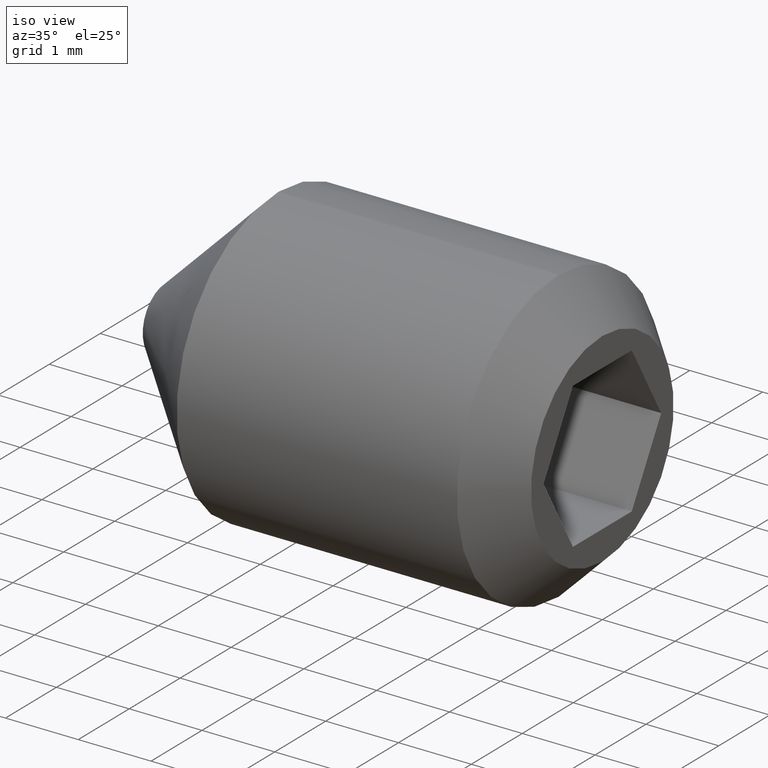
[diagram: clean part render]
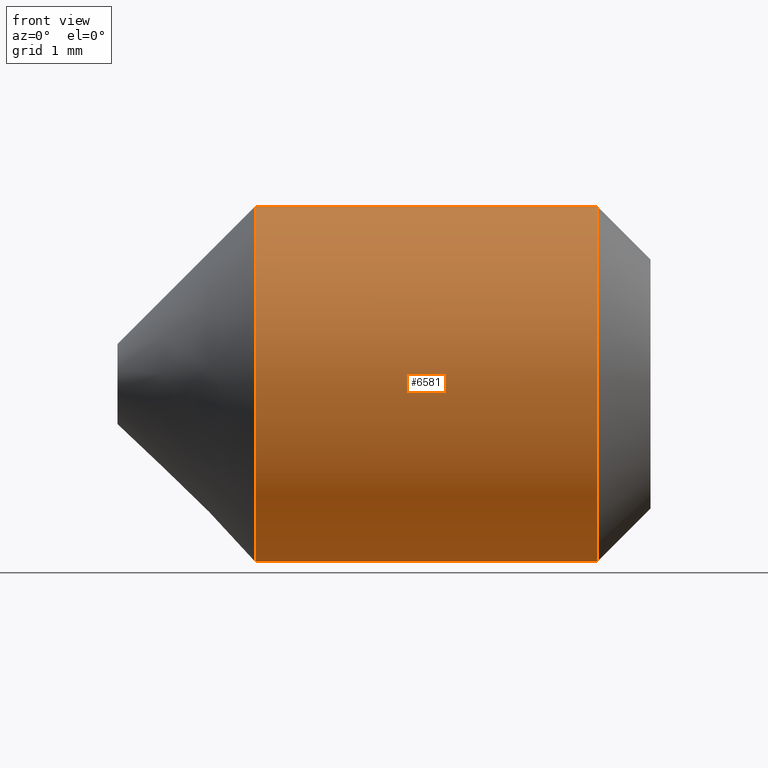
[diagram: tour spotlight — one face highlighted and labeled with its STEP entity id]
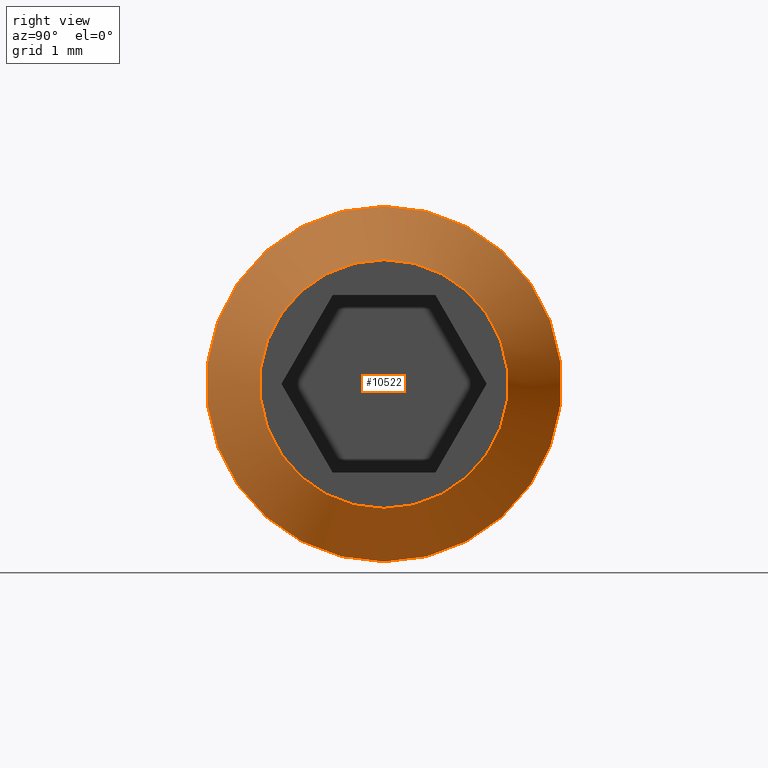
[diagram: tour spotlight — one face highlighted and labeled with its STEP entity id]
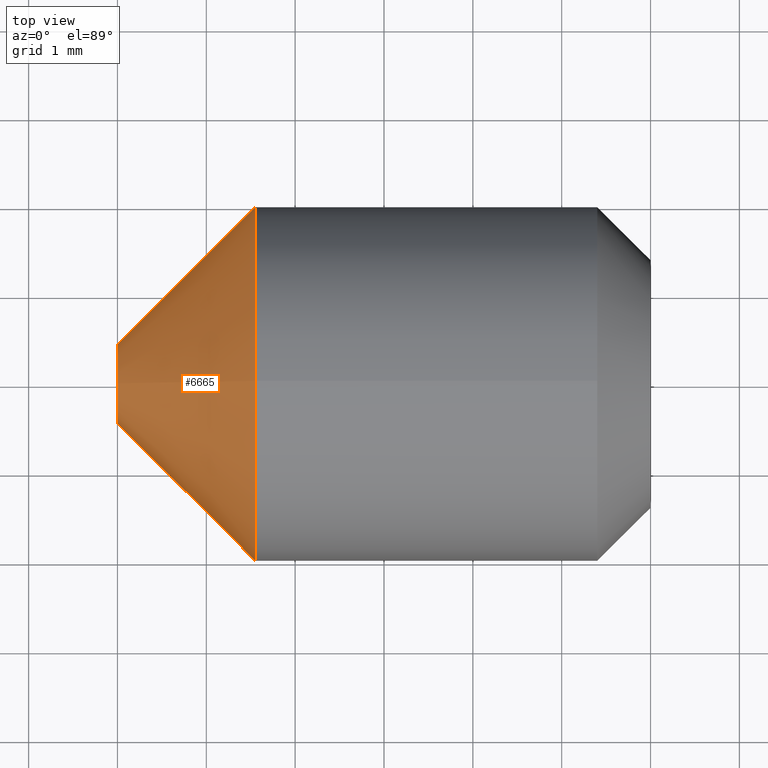
[diagram: tour spotlight — one face highlighted and labeled with its STEP entity id]
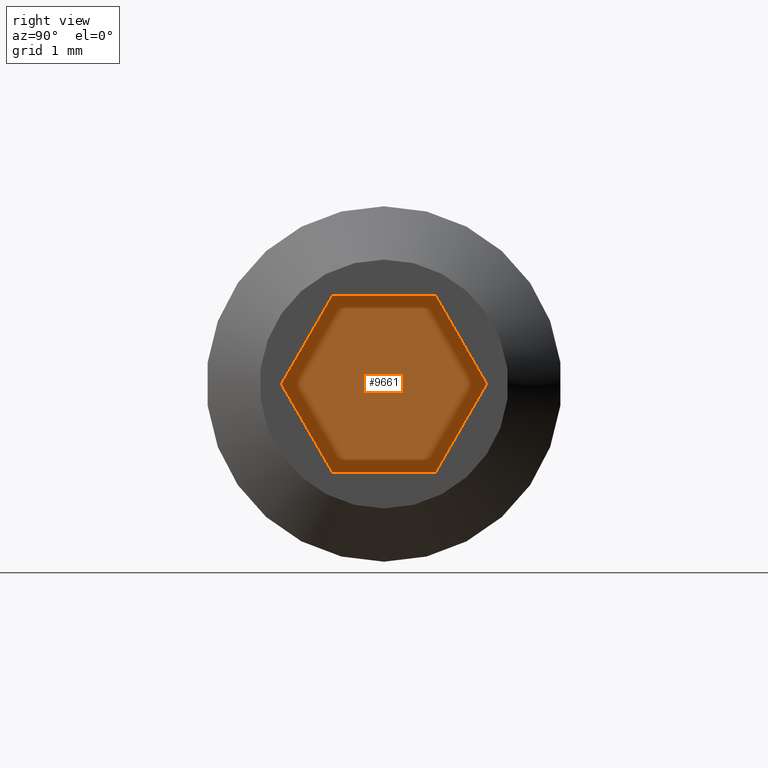
[diagram: tour spotlight — one face highlighted and labeled with its STEP entity id]
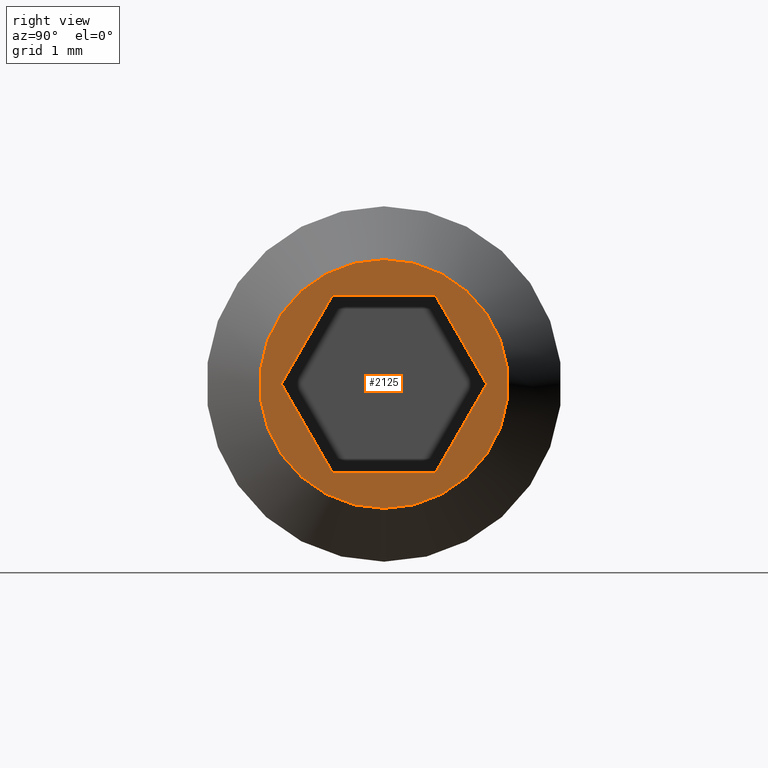
[diagram: tour spotlight — one face highlighted and labeled with its STEP entity id]
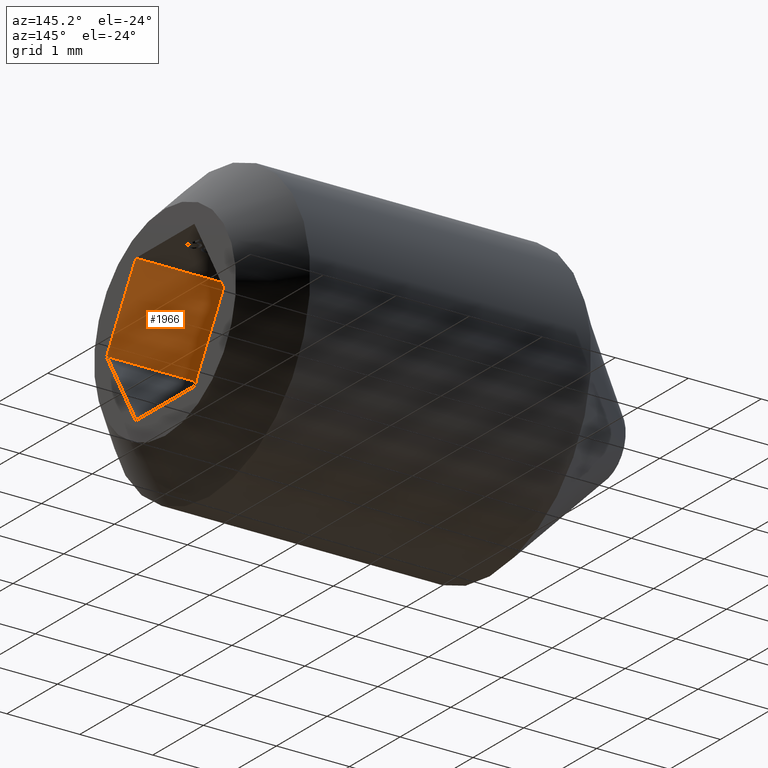
[diagram: tour spotlight — one face highlighted and labeled with its STEP entity id]
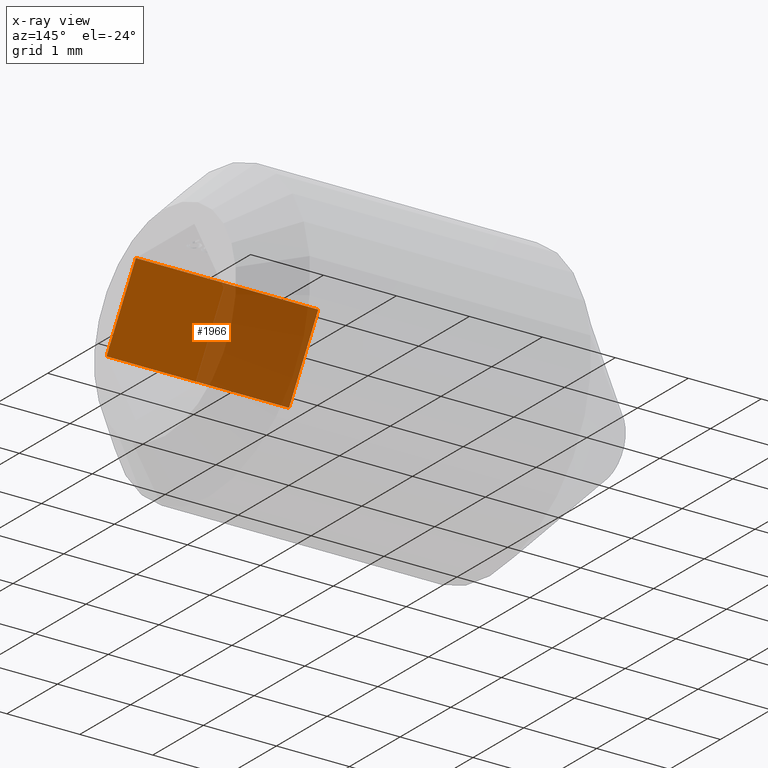
[diagram: x-ray of the same camera — body ghosted, this tour face saturated]
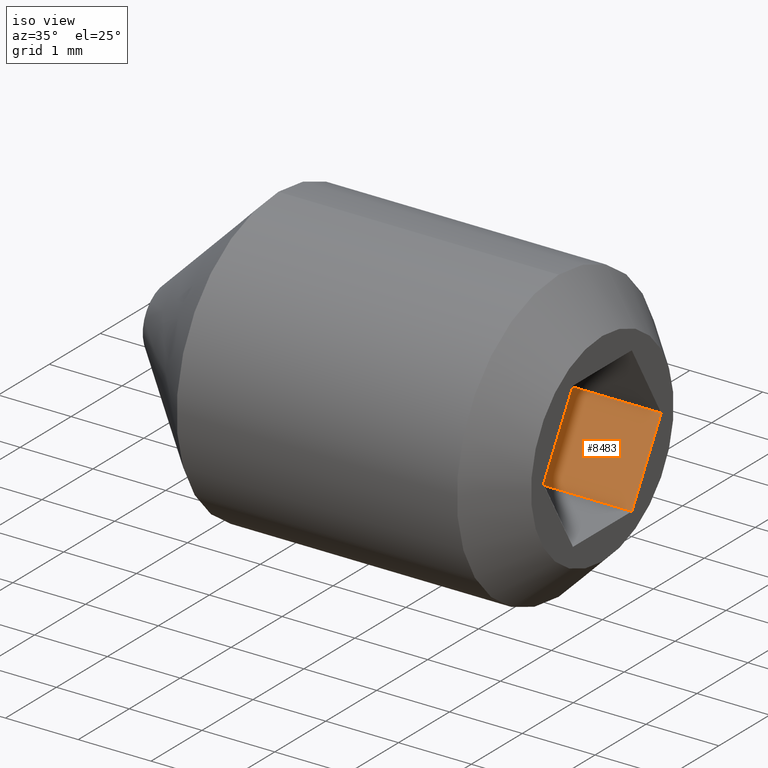
[diagram: tour spotlight — one face highlighted and labeled with its STEP entity id]
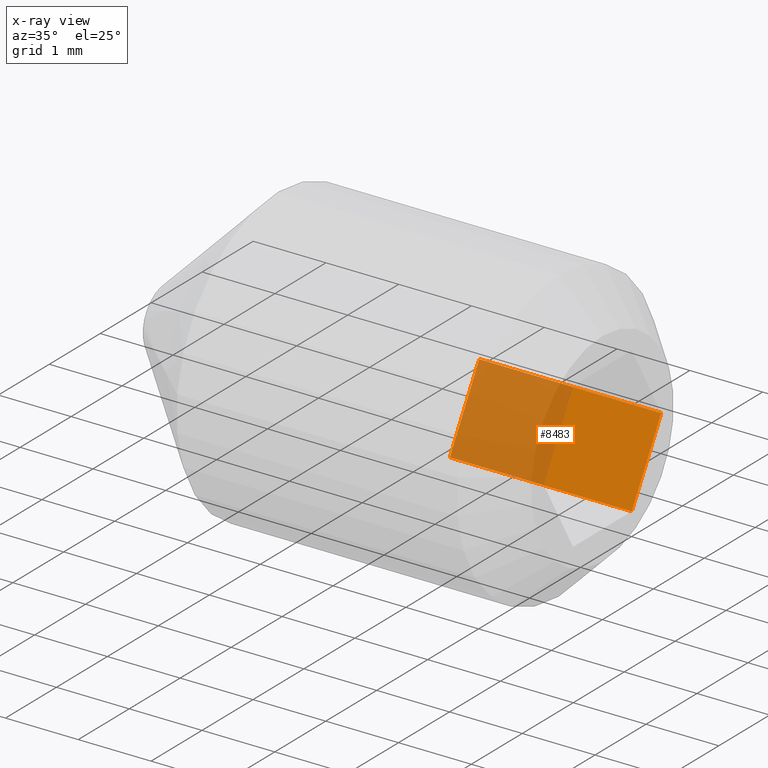
[diagram: x-ray of the same camera — body ghosted, this tour face saturated]
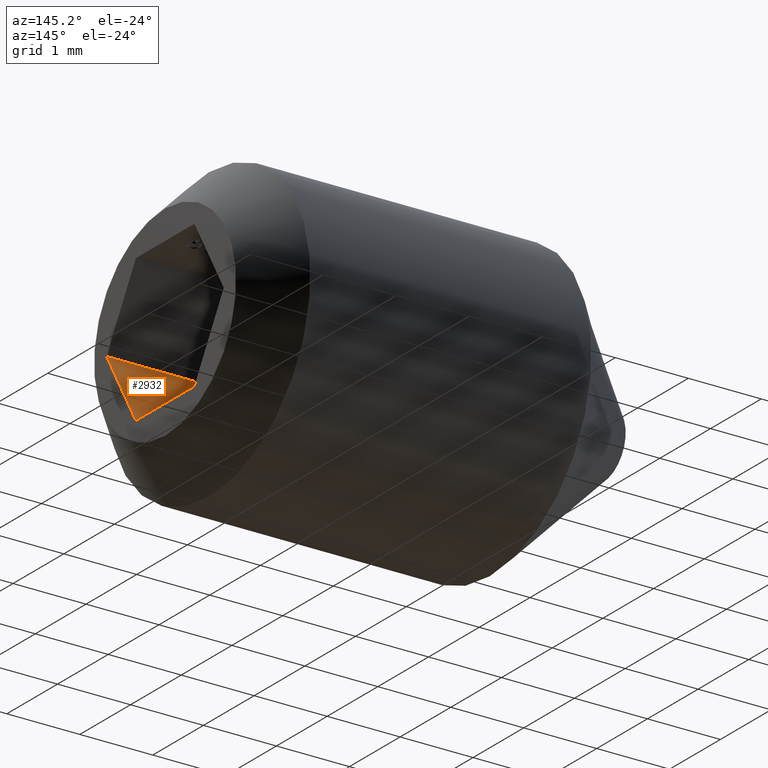
[diagram: tour spotlight — one face highlighted and labeled with its STEP entity id]
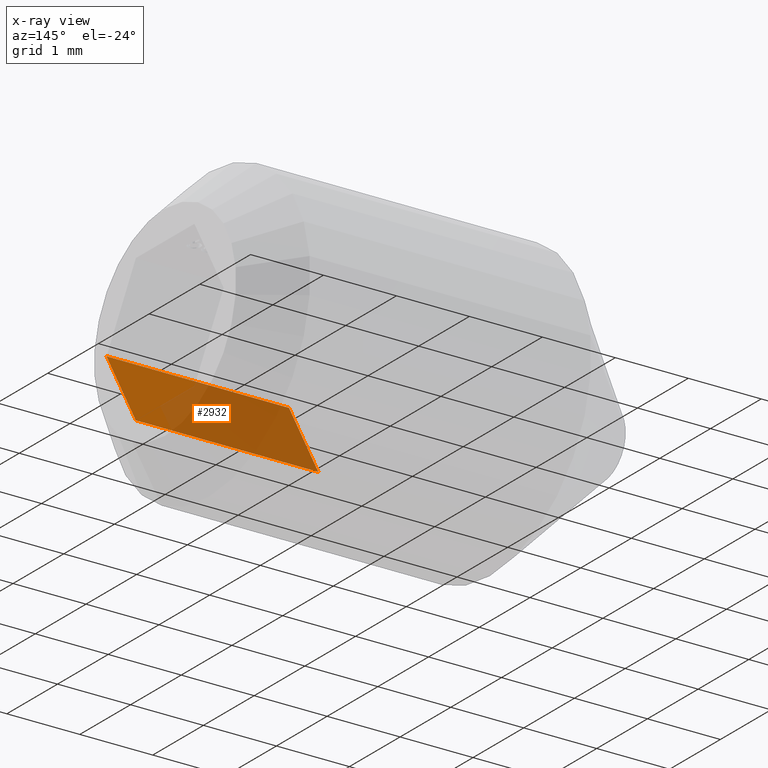
[diagram: x-ray of the same camera — body ghosted, this tour face saturated]
A machine part: a face-by-face anatomy tour. The part has 165 B-rep faces; the first image is the clean iso view, then the 8 largest visible faces are spotlighted one at a time (largest first), each with its STEP entity span.

Face 1 — front view, entity #6581. In plain terms, the highlighted cylindrical surface (bore or boss wall) has radius 2 mm, axis along (-1, -0, -0).
Definition (entity closure, byte-faithful):
#361 = FACE_OUTER_BOUND ( 'NONE', #9504, .T. ) ;
#489 = VERTEX_POINT ( 'NONE', #10719 ) ;
#537 = CARTESIAN_POINT ( 'NONE',  ( 1.549999999999982100, 0.0000000000000000000, 0.0000000000000000000 ) ) ;
#636 = FACE_OUTER_BOUND ( 'NONE', #8634, .T. ) ;
#1382 = DIRECTION ( 'NONE',  ( 0.0000000000000000000, 0.0000000000000000000, 1.000000000000000000 ) ) ;
#2791 = CIRCLE ( 'NONE', #4809, 2.000000000000000000 ) ;
#3397 = CARTESIAN_POINT ( 'NONE',  ( 6.000000000000000000, 0.0000000000000000000, 0.0000000000000000000 ) ) ;
#3510 = DIRECTION ( 'NONE',  ( 0.0000000000000000000, 0.0000000000000000000, 1.000000000000000000 ) ) ;
#3928 = ORIENTED_EDGE ( 'NONE', *, *, #9638, .F. ) ;
#4579 = AXIS2_PLACEMENT_3D ( 'NONE', #3397, #8719, #3510 ) ;
#4809 = AXIS2_PLACEMENT_3D ( 'NONE', #5770, #5037, #4888 ) ;
#4810 = ORIENTED_EDGE ( 'NONE', *, *, #7386, .T. ) ;
#4888 = DIRECTION ( 'NONE',  ( 0.0000000000000000000, 0.0000000000000000000, -1.000000000000000000 ) ) ;
#4957 = AXIS2_PLACEMENT_3D ( 'NONE', #537, #5634, #1382 ) ;
#5037 = DIRECTION ( 'NONE',  ( -1.000000000000000000, 0.0000000000000000000, 0.0000000000000000000 ) ) ;
#5634 = DIRECTION ( 'NONE',  ( -1.000000000000000000, -0.0000000000000000000, -0.0000000000000000000 ) ) ;
#5703 = VERTEX_POINT ( 'NONE', #6362 ) ;
#5770 = CARTESIAN_POINT ( 'NONE',  ( 5.399999999999998600, 0.0000000000000000000, 0.0000000000000000000 ) ) ;
#6362 = CARTESIAN_POINT ( 'NONE',  ( 5.399999999999998600, 0.0000000000000000000, -2.000000000000000000 ) ) ;
#6581 = ADVANCED_FACE ( 'NONE', ( #636, #361 ), #8569, .T. ) ;
#7386 = EDGE_CURVE ( 'NONE', #5703, #5703, #2791, .T. ) ;
#8569 = CYLINDRICAL_SURFACE ( 'NONE', #4579, 2.000000000000000000 ) ;
#8634 = EDGE_LOOP ( 'NONE', ( #4810 ) ) ;
#8719 = DIRECTION ( 'NONE',  ( -1.000000000000000000, -0.0000000000000000000, -0.0000000000000000000 ) ) ;
#9393 = CIRCLE ( 'NONE', #4957, 2.000000000000000000 ) ;
#9504 = EDGE_LOOP ( 'NONE', ( #3928 ) ) ;
#9638 = EDGE_CURVE ( 'NONE', #489, #489, #9393, .T. ) ;
#10719 = CARTESIAN_POINT ( 'NONE',  ( 1.549999999999982100, 0.0000000000000000000, 2.000000000000000000 ) ) ;

Face 2 — right view, entity #10522. In plain terms, the highlighted conical surface has half-angle 45 deg.
Definition (entity closure, byte-faithful):
#995 = DIRECTION ( 'NONE',  ( 1.000000000000000000, 0.0000000000000000000, 0.0000000000000000000 ) ) ;
#1438 = EDGE_LOOP ( 'NONE', ( #6325 ) ) ;
#1467 = CARTESIAN_POINT ( 'NONE',  ( 6.000000000000000000, 0.0000000000000000000, 0.0000000000000000000 ) ) ;
#2791 = CIRCLE ( 'NONE', #4809, 2.000000000000000000 ) ;
#2945 = FACE_BOUND ( 'NONE', #11274, .T. ) ;
#4809 = AXIS2_PLACEMENT_3D ( 'NONE', #5770, #5037, #4888 ) ;
#4888 = DIRECTION ( 'NONE',  ( 0.0000000000000000000, 0.0000000000000000000, -1.000000000000000000 ) ) ;
#5037 = DIRECTION ( 'NONE',  ( -1.000000000000000000, 0.0000000000000000000, 0.0000000000000000000 ) ) ;
#5278 = DIRECTION ( 'NONE',  ( 0.0000000000000000000, 0.0000000000000000000, -1.000000000000000000 ) ) ;
#5703 = VERTEX_POINT ( 'NONE', #6362 ) ;
#5770 = CARTESIAN_POINT ( 'NONE',  ( 5.399999999999998600, 0.0000000000000000000, 0.0000000000000000000 ) ) ;
#5835 = VERTEX_POINT ( 'NONE', #7157 ) ;
#6325 = ORIENTED_EDGE ( 'NONE', *, *, #7386, .F. ) ;
#6362 = CARTESIAN_POINT ( 'NONE',  ( 5.399999999999998600, 0.0000000000000000000, -2.000000000000000000 ) ) ;
#7157 = CARTESIAN_POINT ( 'NONE',  ( 6.000000000000000000, 0.0000000000000000000, -1.400000000000000100 ) ) ;
#7386 = EDGE_CURVE ( 'NONE', #5703, #5703, #2791, .T. ) ;
#7533 = DIRECTION ( 'NONE',  ( -1.000000000000000000, 0.0000000000000000000, 0.0000000000000000000 ) ) ;
#8427 = DIRECTION ( 'NONE',  ( 0.0000000000000000000, 0.0000000000000000000, 1.000000000000000000 ) ) ;
#8445 = ORIENTED_EDGE ( 'NONE', *, *, #9381, .F. ) ;
#8703 = CONICAL_SURFACE ( 'NONE', #9839, 1.400000000000000100, 0.7853981633974469500 ) ;
#9201 = AXIS2_PLACEMENT_3D ( 'NONE', #10619, #995, #5278 ) ;
#9381 = EDGE_CURVE ( 'NONE', #5835, #5835, #10202, .T. ) ;
#9839 = AXIS2_PLACEMENT_3D ( 'NONE', #1467, #7533, #8427 ) ;
#10202 = CIRCLE ( 'NONE', #9201, 1.400000000000000100 ) ;
#10522 = ADVANCED_FACE ( 'NONE', ( #11281, #2945 ), #8703, .T. ) ;
#10619 = CARTESIAN_POINT ( 'NONE',  ( 6.000000000000000000, 0.0000000000000000000, 0.0000000000000000000 ) ) ;
#11274 = EDGE_LOOP ( 'NONE', ( #8445 ) ) ;
#11281 = FACE_OUTER_BOUND ( 'NONE', #1438, .T. ) ;

Face 3 — top view, entity #6665. In plain terms, the highlighted conical surface has half-angle 45 deg.
Definition (entity closure, byte-faithful):
#468 = DIRECTION ( 'NONE',  ( -1.000000000000000000, -0.0000000000000000000, -0.0000000000000000000 ) ) ;
#489 = VERTEX_POINT ( 'NONE', #10719 ) ;
#537 = CARTESIAN_POINT ( 'NONE',  ( 1.549999999999982100, 0.0000000000000000000, 0.0000000000000000000 ) ) ;
#854 = EDGE_LOOP ( 'NONE', ( #1223 ) ) ;
#1143 = DIRECTION ( 'NONE',  ( 0.0000000000000000000, 0.0000000000000000000, -1.000000000000000000 ) ) ;
#1223 = ORIENTED_EDGE ( 'NONE', *, *, #9638, .T. ) ;
#1382 = DIRECTION ( 'NONE',  ( 0.0000000000000000000, 0.0000000000000000000, 1.000000000000000000 ) ) ;
#2887 = EDGE_LOOP ( 'NONE', ( #3320 ) ) ;
#2976 = CIRCLE ( 'NONE', #10121, 0.4500000000000000100 ) ;
#3248 = CARTESIAN_POINT ( 'NONE',  ( 4.347496136973103900E-016, 0.0000000000000000000, 0.0000000000000000000 ) ) ;
#3320 = ORIENTED_EDGE ( 'NONE', *, *, #4423, .F. ) ;
#4310 = VERTEX_POINT ( 'NONE', #5500 ) ;
#4423 = EDGE_CURVE ( 'NONE', #4310, #4310, #2976, .T. ) ;
#4662 = DIRECTION ( 'NONE',  ( 1.000000000000000000, 0.0000000000000000000, 0.0000000000000000000 ) ) ;
#4957 = AXIS2_PLACEMENT_3D ( 'NONE', #537, #5634, #1382 ) ;
#5500 = CARTESIAN_POINT ( 'NONE',  ( 4.347496136973103900E-016, 0.0000000000000000000, 0.4500000000000000100 ) ) ;
#5634 = DIRECTION ( 'NONE',  ( -1.000000000000000000, -0.0000000000000000000, -0.0000000000000000000 ) ) ;
#5831 = DIRECTION ( 'NONE',  ( 0.0000000000000000000, 0.0000000000000000000, 1.000000000000000000 ) ) ;
#6409 = CARTESIAN_POINT ( 'NONE',  ( 4.347496136973103900E-016, 0.0000000000000000000, 0.0000000000000000000 ) ) ;
#6665 = ADVANCED_FACE ( 'NONE', ( #10331, #11010 ), #7731, .T. ) ;
#7731 = CONICAL_SURFACE ( 'NONE', #8322, 0.4500000000000000100, 0.7853981633974542700 ) ;
#8322 = AXIS2_PLACEMENT_3D ( 'NONE', #6409, #4662, #1143 ) ;
#9393 = CIRCLE ( 'NONE', #4957, 2.000000000000000000 ) ;
#9638 = EDGE_CURVE ( 'NONE', #489, #489, #9393, .T. ) ;
#10121 = AXIS2_PLACEMENT_3D ( 'NONE', #3248, #468, #5831 ) ;
#10331 = FACE_OUTER_BOUND ( 'NONE', #854, .T. ) ;
#10719 = CARTESIAN_POINT ( 'NONE',  ( 1.549999999999982100, 0.0000000000000000000, 2.000000000000000000 ) ) ;
#11010 = FACE_BOUND ( 'NONE', #2887, .T. ) ;

Face 4 — right view, entity #9661. In plain terms, the highlighted planar face has unit normal (-1, -0, 0).
Definition (entity closure, byte-faithful):
#118 = VECTOR ( 'NONE', #4070, 1000.000000000000000 ) ;
#155 = DIRECTION ( 'NONE',  ( 0.0000000000000000000, -0.5000000000000001100, -0.8660254037844384900 ) ) ;
#458 = DIRECTION ( 'NONE',  ( -1.000000000000000000, -0.0000000000000000000, 0.0000000000000000000 ) ) ;
#535 = CARTESIAN_POINT ( 'NONE',  ( 3.500000000000000000, -0.5773502691896258400, -1.000000000000000000 ) ) ;
#1204 = VECTOR ( 'NONE', #9921, 1000.000000000000100 ) ;
#1760 = CARTESIAN_POINT ( 'NONE',  ( 3.500000000000000000, 0.5773502691896261800, 0.9999999999999997800 ) ) ;
#1848 = FACE_OUTER_BOUND ( 'NONE', #5796, .T. ) ;
#1894 = LINE ( 'NONE', #7055, #10923 ) ;
#1945 = CARTESIAN_POINT ( 'NONE',  ( 3.500000000000000000, -0.5773502691896254000, 0.9999999999999997800 ) ) ;
#2048 = ORIENTED_EDGE ( 'NONE', *, *, #4033, .T. ) ;
#2049 = EDGE_CURVE ( 'NONE', #10692, #3349, #11188, .T. ) ;
#2283 = EDGE_CURVE ( 'NONE', #11263, #10692, #1894, .T. ) ;
#3028 = CARTESIAN_POINT ( 'NONE',  ( 3.500000000000000000, 0.5773502691896259500, -1.000000000000000000 ) ) ;
#3191 = ORIENTED_EDGE ( 'NONE', *, *, #5837, .T. ) ;
#3349 = VERTEX_POINT ( 'NONE', #11186 ) ;
#3694 = CARTESIAN_POINT ( 'NONE',  ( 3.500000000000000000, -1.154700538379251200, 5.486416647802232900E-017 ) ) ;
#3723 = CARTESIAN_POINT ( 'NONE',  ( 3.500000000000000000, 1.154700538379251700, -1.644120263289735000E-016 ) ) ;
#3863 = CARTESIAN_POINT ( 'NONE',  ( 3.500000000000000000, 8.673617379884035500E-016, 1.999999999999999600 ) ) ;
#3944 = EDGE_CURVE ( 'NONE', #3349, #4671, #8465, .T. ) ;
#4033 = EDGE_CURVE ( 'NONE', #4329, #11263, #9407, .T. ) ;
#4070 = DIRECTION ( 'NONE',  ( 0.0000000000000000000, -1.000000000000000000, 0.0000000000000000000 ) ) ;
#4329 = VERTEX_POINT ( 'NONE', #10631 ) ;
#4671 = VERTEX_POINT ( 'NONE', #7026 ) ;
#4760 = VECTOR ( 'NONE', #6015, 1000.000000000000000 ) ;
#4778 = EDGE_CURVE ( 'NONE', #4671, #4853, #5438, .T. ) ;
#4853 = VERTEX_POINT ( 'NONE', #535 ) ;
#5438 = LINE ( 'NONE', #3694, #1204 ) ;
#5777 = CARTESIAN_POINT ( 'NONE',  ( 3.500000000000000000, 0.5773502691896261800, 0.9999999999999997800 ) ) ;
#5796 = EDGE_LOOP ( 'NONE', ( #9596, #7195, #3191, #2048, #9850, #11241 ) ) ;
#5837 = EDGE_CURVE ( 'NONE', #4853, #4329, #7067, .T. ) ;
#6015 = DIRECTION ( 'NONE',  ( 0.0000000000000000000, 1.000000000000000000, 0.0000000000000000000 ) ) ;
#6109 = DIRECTION ( 'NONE',  ( 0.0000000000000000000, -0.4999999999999997800, 0.8660254037844387100 ) ) ;
#6492 = DIRECTION ( 'NONE',  ( 0.0000000000000000000, 0.0000000000000000000, 1.000000000000000000 ) ) ;
#6549 = DIRECTION ( 'NONE',  ( 0.0000000000000000000, 0.4999999999999999400, 0.8660254037844386000 ) ) ;
#7026 = CARTESIAN_POINT ( 'NONE',  ( 3.500000000000000000, -1.154700538379251200, 5.486416647802232900E-017 ) ) ;
#7055 = CARTESIAN_POINT ( 'NONE',  ( 3.500000000000000000, 1.154700538379251700, -1.644120263289735000E-016 ) ) ;
#7067 = LINE ( 'NONE', #8532, #4760 ) ;
#7195 = ORIENTED_EDGE ( 'NONE', *, *, #4778, .T. ) ;
#8338 = PLANE ( 'NONE',  #9260 ) ;
#8465 = LINE ( 'NONE', #1945, #9139 ) ;
#8532 = CARTESIAN_POINT ( 'NONE',  ( 3.500000000000000000, -0.5773502691896258400, -1.000000000000000000 ) ) ;
#9002 = VECTOR ( 'NONE', #6549, 1000.000000000000100 ) ;
#9139 = VECTOR ( 'NONE', #155, 1000.000000000000200 ) ;
#9260 = AXIS2_PLACEMENT_3D ( 'NONE', #3863, #458, #6492 ) ;
#9407 = LINE ( 'NONE', #3028, #9002 ) ;
#9596 = ORIENTED_EDGE ( 'NONE', *, *, #3944, .T. ) ;
#9661 = ADVANCED_FACE ( 'NONE', ( #1848 ), #8338, .F. ) ;
#9850 = ORIENTED_EDGE ( 'NONE', *, *, #2283, .T. ) ;
#9921 = DIRECTION ( 'NONE',  ( 0.0000000000000000000, 0.4999999999999997200, -0.8660254037844388200 ) ) ;
#10631 = CARTESIAN_POINT ( 'NONE',  ( 3.500000000000000000, 0.5773502691896259500, -1.000000000000000000 ) ) ;
#10692 = VERTEX_POINT ( 'NONE', #1760 ) ;
#10923 = VECTOR ( 'NONE', #6109, 1000.000000000000200 ) ;
#11186 = CARTESIAN_POINT ( 'NONE',  ( 3.500000000000000000, -0.5773502691896254000, 0.9999999999999997800 ) ) ;
#11188 = LINE ( 'NONE', #5777, #118 ) ;
#11241 = ORIENTED_EDGE ( 'NONE', *, *, #2049, .T. ) ;
#11263 = VERTEX_POINT ( 'NONE', #3723 ) ;

Face 5 — right view, entity #2125. In plain terms, the highlighted planar face has unit normal (1, 0, 0).
Definition (entity closure, byte-faithful):
#189 = DIRECTION ( 'NONE',  ( 0.0000000000000000000, 0.4999999999999999400, 0.8660254037844386000 ) ) ;
#218 = VECTOR ( 'NONE', #3538, 1000.000000000000200 ) ;
#533 = PLANE ( 'NONE',  #8066 ) ;
#552 = EDGE_CURVE ( 'NONE', #6712, #9568, #7659, .T. ) ;
#824 = VECTOR ( 'NONE', #189, 1000.000000000000100 ) ;
#866 = VERTEX_POINT ( 'NONE', #6437 ) ;
#995 = DIRECTION ( 'NONE',  ( 1.000000000000000000, 0.0000000000000000000, 0.0000000000000000000 ) ) ;
#1405 = EDGE_CURVE ( 'NONE', #1854, #5495, #3142, .T. ) ;
#1617 = ORIENTED_EDGE ( 'NONE', *, *, #5652, .F. ) ;
#1854 = VERTEX_POINT ( 'NONE', #2758 ) ;
#2125 = ADVANCED_FACE ( 'NONE', ( #9692, #5751 ), #533, .T. ) ;
#2221 = EDGE_LOOP ( 'NONE', ( #6467, #8809, #1617, #7024, #10523, #9194 ) ) ;
#2243 = VECTOR ( 'NONE', #10959, 1000.000000000000200 ) ;
#2379 = LINE ( 'NONE', #8268, #2243 ) ;
#2670 = LINE ( 'NONE', #7894, #218 ) ;
#2758 = CARTESIAN_POINT ( 'NONE',  ( 6.000000000000000000, 0.5773502691896259500, -0.9999999999999997800 ) ) ;
#3123 = DIRECTION ( 'NONE',  ( 1.000000000000000000, 0.0000000000000000000, 0.0000000000000000000 ) ) ;
#3135 = EDGE_CURVE ( 'NONE', #866, #3330, #7086, .T. ) ;
#3142 = LINE ( 'NONE', #8762, #824 ) ;
#3166 = CARTESIAN_POINT ( 'NONE',  ( 6.000000000000000000, 0.5773502691896261800, 1.000000000000000000 ) ) ;
#3330 = VERTEX_POINT ( 'NONE', #9621 ) ;
#3538 = DIRECTION ( 'NONE',  ( 0.0000000000000000000, -0.4999999999999997800, 0.8660254037844387100 ) ) ;
#3786 = DIRECTION ( 'NONE',  ( 0.0000000000000000000, 0.4999999999999997200, -0.8660254037844388200 ) ) ;
#3974 = DIRECTION ( 'NONE',  ( 0.0000000000000000000, -1.000000000000000000, 0.0000000000000000000 ) ) ;
#4203 = LINE ( 'NONE', #11205, #6000 ) ;
#4715 = CARTESIAN_POINT ( 'NONE',  ( 6.000000000000000000, -1.154700538379251200, 2.079399607058194800E-016 ) ) ;
#4928 = EDGE_CURVE ( 'NONE', #9568, #1854, #4203, .T. ) ;
#5278 = DIRECTION ( 'NONE',  ( 0.0000000000000000000, 0.0000000000000000000, -1.000000000000000000 ) ) ;
#5495 = VERTEX_POINT ( 'NONE', #9437 ) ;
#5652 = EDGE_CURVE ( 'NONE', #5495, #866, #2670, .T. ) ;
#5751 = FACE_OUTER_BOUND ( 'NONE', #7573, .T. ) ;
#5835 = VERTEX_POINT ( 'NONE', #7157 ) ;
#6000 = VECTOR ( 'NONE', #10213, 1000.000000000000000 ) ;
#6437 = CARTESIAN_POINT ( 'NONE',  ( 6.000000000000000000, 0.5773502691896261800, 1.000000000000000000 ) ) ;
#6467 = ORIENTED_EDGE ( 'NONE', *, *, #7623, .F. ) ;
#6638 = DIRECTION ( 'NONE',  ( 0.0000000000000000000, 0.0000000000000000000, -1.000000000000000000 ) ) ;
#6712 = VERTEX_POINT ( 'NONE', #7244 ) ;
#7024 = ORIENTED_EDGE ( 'NONE', *, *, #1405, .F. ) ;
#7086 = LINE ( 'NONE', #3166, #9151 ) ;
#7157 = CARTESIAN_POINT ( 'NONE',  ( 6.000000000000000000, 0.0000000000000000000, -1.400000000000000100 ) ) ;
#7244 = CARTESIAN_POINT ( 'NONE',  ( 6.000000000000000000, -1.154700538379251200, 2.168404344971008900E-016 ) ) ;
#7573 = EDGE_LOOP ( 'NONE', ( #11080 ) ) ;
#7623 = EDGE_CURVE ( 'NONE', #3330, #6712, #2379, .T. ) ;
#7659 = LINE ( 'NONE', #4715, #10389 ) ;
#7894 = CARTESIAN_POINT ( 'NONE',  ( 6.000000000000000000, 1.154700538379251700, -1.133623210117634900E-017 ) ) ;
#8066 = AXIS2_PLACEMENT_3D ( 'NONE', #8487, #3123, #6638 ) ;
#8268 = CARTESIAN_POINT ( 'NONE',  ( 6.000000000000000000, -0.5773502691896254000, 1.000000000000000000 ) ) ;
#8487 = CARTESIAN_POINT ( 'NONE',  ( 6.000000000000000000, 0.0000000000000000000, 0.0000000000000000000 ) ) ;
#8762 = CARTESIAN_POINT ( 'NONE',  ( 6.000000000000000000, 0.5773502691896259500, -0.9999999999999997800 ) ) ;
#8809 = ORIENTED_EDGE ( 'NONE', *, *, #3135, .F. ) ;
#9151 = VECTOR ( 'NONE', #3974, 1000.000000000000000 ) ;
#9194 = ORIENTED_EDGE ( 'NONE', *, *, #552, .F. ) ;
#9201 = AXIS2_PLACEMENT_3D ( 'NONE', #10619, #995, #5278 ) ;
#9381 = EDGE_CURVE ( 'NONE', #5835, #5835, #10202, .T. ) ;
#9437 = CARTESIAN_POINT ( 'NONE',  ( 6.000000000000000000, 1.154700538379251700, -1.133623210117634900E-017 ) ) ;
#9568 = VERTEX_POINT ( 'NONE', #9923 ) ;
#9621 = CARTESIAN_POINT ( 'NONE',  ( 6.000000000000000000, -0.5773502691896254000, 1.000000000000000000 ) ) ;
#9692 = FACE_BOUND ( 'NONE', #2221, .T. ) ;
#9923 = CARTESIAN_POINT ( 'NONE',  ( 6.000000000000000000, -0.5773502691896258400, -0.9999999999999997800 ) ) ;
#10202 = CIRCLE ( 'NONE', #9201, 1.400000000000000100 ) ;
#10213 = DIRECTION ( 'NONE',  ( 0.0000000000000000000, 1.000000000000000000, 0.0000000000000000000 ) ) ;
#10389 = VECTOR ( 'NONE', #3786, 1000.000000000000100 ) ;
#10523 = ORIENTED_EDGE ( 'NONE', *, *, #4928, .F. ) ;
#10619 = CARTESIAN_POINT ( 'NONE',  ( 6.000000000000000000, 0.0000000000000000000, 0.0000000000000000000 ) ) ;
#10959 = DIRECTION ( 'NONE',  ( 0.0000000000000000000, -0.5000000000000001100, -0.8660254037844384900 ) ) ;
#11080 = ORIENTED_EDGE ( 'NONE', *, *, #9381, .T. ) ;
#11205 = CARTESIAN_POINT ( 'NONE',  ( 6.000000000000000000, -0.5773502691896258400, -0.9999999999999997800 ) ) ;

Face 6 — auxiliary view, entity #1966. An x-ray twin of the same camera follows (body ghosted, this face saturated) — the face is partly hidden behind the body. In plain terms, the highlighted planar face has unit normal (-0, -0.866, 0.5).
Definition (entity closure, byte-faithful):
#81 = VECTOR ( 'NONE', #617, 1000.000000000000000 ) ;
#155 = DIRECTION ( 'NONE',  ( 0.0000000000000000000, -0.5000000000000001100, -0.8660254037844384900 ) ) ;
#340 = DIRECTION ( 'NONE',  ( -3.061515884555944400E-017, -0.8660254037844386000, 0.5000000000000003300 ) ) ;
#374 = LINE ( 'NONE', #10926, #81 ) ;
#617 = DIRECTION ( 'NONE',  ( 1.000000000000000000, -0.0000000000000000000, 6.123031769111886300E-017 ) ) ;
#1370 = FACE_OUTER_BOUND ( 'NONE', #6081, .T. ) ;
#1514 = ORIENTED_EDGE ( 'NONE', *, *, #7735, .T. ) ;
#1945 = CARTESIAN_POINT ( 'NONE',  ( 3.500000000000000000, -0.5773502691896254000, 0.9999999999999997800 ) ) ;
#1966 = ADVANCED_FACE ( 'NONE', ( #1370 ), #6531, .F. ) ;
#1979 = AXIS2_PLACEMENT_3D ( 'NONE', #3083, #340, #2155 ) ;
#2155 = DIRECTION ( 'NONE',  ( 0.0000000000000000000, -0.5000000000000002200, -0.8660254037844384900 ) ) ;
#2243 = VECTOR ( 'NONE', #10959, 1000.000000000000200 ) ;
#2379 = LINE ( 'NONE', #8268, #2243 ) ;
#3083 = CARTESIAN_POINT ( 'NONE',  ( 3.500000000000000000, -0.5773502691896254000, 0.9999999999999997800 ) ) ;
#3330 = VERTEX_POINT ( 'NONE', #9621 ) ;
#3349 = VERTEX_POINT ( 'NONE', #11186 ) ;
#3387 = DIRECTION ( 'NONE',  ( 1.000000000000000000, -0.0000000000000000000, 6.123031769111886300E-017 ) ) ;
#3944 = EDGE_CURVE ( 'NONE', #3349, #4671, #8465, .T. ) ;
#4671 = VERTEX_POINT ( 'NONE', #7026 ) ;
#4725 = ORIENTED_EDGE ( 'NONE', *, *, #5814, .F. ) ;
#4866 = CARTESIAN_POINT ( 'NONE',  ( 3.500000000000000000, -0.5773502691896254000, 0.9999999999999997800 ) ) ;
#5814 = EDGE_CURVE ( 'NONE', #4671, #6712, #374, .T. ) ;
#6081 = EDGE_LOOP ( 'NONE', ( #8514, #4725, #9763, #1514 ) ) ;
#6531 = PLANE ( 'NONE',  #1979 ) ;
#6712 = VERTEX_POINT ( 'NONE', #7244 ) ;
#7026 = CARTESIAN_POINT ( 'NONE',  ( 3.500000000000000000, -1.154700538379251200, 5.486416647802232900E-017 ) ) ;
#7244 = CARTESIAN_POINT ( 'NONE',  ( 6.000000000000000000, -1.154700538379251200, 2.168404344971008900E-016 ) ) ;
#7623 = EDGE_CURVE ( 'NONE', #3330, #6712, #2379, .T. ) ;
#7735 = EDGE_CURVE ( 'NONE', #3349, #3330, #10872, .T. ) ;
#8268 = CARTESIAN_POINT ( 'NONE',  ( 6.000000000000000000, -0.5773502691896254000, 1.000000000000000000 ) ) ;
#8465 = LINE ( 'NONE', #1945, #9139 ) ;
#8514 = ORIENTED_EDGE ( 'NONE', *, *, #7623, .T. ) ;
#9139 = VECTOR ( 'NONE', #155, 1000.000000000000200 ) ;
#9239 = VECTOR ( 'NONE', #3387, 1000.000000000000000 ) ;
#9621 = CARTESIAN_POINT ( 'NONE',  ( 6.000000000000000000, -0.5773502691896254000, 1.000000000000000000 ) ) ;
#9763 = ORIENTED_EDGE ( 'NONE', *, *, #3944, .F. ) ;
#10872 = LINE ( 'NONE', #4866, #9239 ) ;
#10926 = CARTESIAN_POINT ( 'NONE',  ( 3.500000000000000000, -1.154700538379251200, 5.486416647802232900E-017 ) ) ;
#10959 = DIRECTION ( 'NONE',  ( 0.0000000000000000000, -0.5000000000000001100, -0.8660254037844384900 ) ) ;
#11186 = CARTESIAN_POINT ( 'NONE',  ( 3.500000000000000000, -0.5773502691896254000, 0.9999999999999997800 ) ) ;

Face 7 — iso view, entity #8483. An x-ray twin of the same camera follows (body ghosted, this face saturated) — the face is partly hidden behind the body. In plain terms, the highlighted planar face has unit normal (0, 0.866, -0.5).
Definition (entity closure, byte-faithful):
#181 = DIRECTION ( 'NONE',  ( 1.000000000000000000, -0.0000000000000000000, 6.123031769111886300E-017 ) ) ;
#189 = DIRECTION ( 'NONE',  ( 0.0000000000000000000, 0.4999999999999999400, 0.8660254037844386000 ) ) ;
#270 = FACE_OUTER_BOUND ( 'NONE', #8711, .T. ) ;
#321 = CARTESIAN_POINT ( 'NONE',  ( 3.500000000000000000, 0.5773502691896259500, -1.000000000000000000 ) ) ;
#824 = VECTOR ( 'NONE', #189, 1000.000000000000100 ) ;
#941 = CARTESIAN_POINT ( 'NONE',  ( 3.500000000000000000, 1.154700538379251700, -1.644120263289735000E-016 ) ) ;
#1405 = EDGE_CURVE ( 'NONE', #1854, #5495, #3142, .T. ) ;
#1854 = VERTEX_POINT ( 'NONE', #2758 ) ;
#2141 = LINE ( 'NONE', #8092, #4056 ) ;
#2758 = CARTESIAN_POINT ( 'NONE',  ( 6.000000000000000000, 0.5773502691896259500, -0.9999999999999997800 ) ) ;
#3028 = CARTESIAN_POINT ( 'NONE',  ( 3.500000000000000000, 0.5773502691896259500, -1.000000000000000000 ) ) ;
#3142 = LINE ( 'NONE', #8762, #824 ) ;
#3642 = ORIENTED_EDGE ( 'NONE', *, *, #1405, .T. ) ;
#3723 = CARTESIAN_POINT ( 'NONE',  ( 3.500000000000000000, 1.154700538379251700, -1.644120263289735000E-016 ) ) ;
#4027 = ORIENTED_EDGE ( 'NONE', *, *, #5203, .F. ) ;
#4033 = EDGE_CURVE ( 'NONE', #4329, #11263, #9407, .T. ) ;
#4056 = VECTOR ( 'NONE', #181, 1000.000000000000000 ) ;
#4329 = VERTEX_POINT ( 'NONE', #10631 ) ;
#5203 = EDGE_CURVE ( 'NONE', #11263, #5495, #11021, .T. ) ;
#5274 = ORIENTED_EDGE ( 'NONE', *, *, #5349, .T. ) ;
#5349 = EDGE_CURVE ( 'NONE', #4329, #1854, #2141, .T. ) ;
#5495 = VERTEX_POINT ( 'NONE', #9437 ) ;
#5983 = AXIS2_PLACEMENT_3D ( 'NONE', #321, #9862, #6434 ) ;
#6163 = ORIENTED_EDGE ( 'NONE', *, *, #4033, .F. ) ;
#6434 = DIRECTION ( 'NONE',  ( 0.0000000000000000000, 0.5000000000000000000, 0.8660254037844386000 ) ) ;
#6549 = DIRECTION ( 'NONE',  ( 0.0000000000000000000, 0.4999999999999999400, 0.8660254037844386000 ) ) ;
#8092 = CARTESIAN_POINT ( 'NONE',  ( 3.500000000000000000, 0.5773502691896259500, -1.000000000000000000 ) ) ;
#8112 = PLANE ( 'NONE',  #5983 ) ;
#8483 = ADVANCED_FACE ( 'NONE', ( #270 ), #8112, .F. ) ;
#8711 = EDGE_LOOP ( 'NONE', ( #3642, #4027, #6163, #5274 ) ) ;
#8762 = CARTESIAN_POINT ( 'NONE',  ( 6.000000000000000000, 0.5773502691896259500, -0.9999999999999997800 ) ) ;
#9002 = VECTOR ( 'NONE', #6549, 1000.000000000000100 ) ;
#9333 = DIRECTION ( 'NONE',  ( 1.000000000000000000, -0.0000000000000000000, 6.123031769111886300E-017 ) ) ;
#9407 = LINE ( 'NONE', #3028, #9002 ) ;
#9437 = CARTESIAN_POINT ( 'NONE',  ( 6.000000000000000000, 1.154700538379251700, -1.133623210117634900E-017 ) ) ;
#9530 = VECTOR ( 'NONE', #9333, 1000.000000000000000 ) ;
#9862 = DIRECTION ( 'NONE',  ( 3.061515884555943800E-017, 0.8660254037844387100, -0.5000000000000001100 ) ) ;
#10631 = CARTESIAN_POINT ( 'NONE',  ( 3.500000000000000000, 0.5773502691896259500, -1.000000000000000000 ) ) ;
#11021 = LINE ( 'NONE', #941, #9530 ) ;
#11263 = VERTEX_POINT ( 'NONE', #3723 ) ;

Face 8 — auxiliary view, entity #2932. An x-ray twin of the same camera follows (body ghosted, this face saturated) — the face is partly hidden behind the body. In plain terms, the highlighted planar face has unit normal (0, -0.866, -0.5).
Definition (entity closure, byte-faithful):
#81 = VECTOR ( 'NONE', #617, 1000.000000000000000 ) ;
#108 = ORIENTED_EDGE ( 'NONE', *, *, #4778, .F. ) ;
#374 = LINE ( 'NONE', #10926, #81 ) ;
#535 = CARTESIAN_POINT ( 'NONE',  ( 3.500000000000000000, -0.5773502691896258400, -1.000000000000000000 ) ) ;
#552 = EDGE_CURVE ( 'NONE', #6712, #9568, #7659, .T. ) ;
#617 = DIRECTION ( 'NONE',  ( 1.000000000000000000, -0.0000000000000000000, 6.123031769111886300E-017 ) ) ;
#968 = CARTESIAN_POINT ( 'NONE',  ( 3.500000000000000000, -1.154700538379251200, 5.486416647802232900E-017 ) ) ;
#1050 = AXIS2_PLACEMENT_3D ( 'NONE', #968, #5398, #1800 ) ;
#1204 = VECTOR ( 'NONE', #9921, 1000.000000000000100 ) ;
#1497 = DIRECTION ( 'NONE',  ( 1.000000000000000000, -0.0000000000000000000, 6.123031769111886300E-017 ) ) ;
#1800 = DIRECTION ( 'NONE',  ( 0.0000000000000000000, 0.4999999999999997200, -0.8660254037844388200 ) ) ;
#2256 = LINE ( 'NONE', #10192, #8979 ) ;
#2932 = ADVANCED_FACE ( 'NONE', ( #6545 ), #11192, .F. ) ;
#3694 = CARTESIAN_POINT ( 'NONE',  ( 3.500000000000000000, -1.154700538379251200, 5.486416647802232900E-017 ) ) ;
#3786 = DIRECTION ( 'NONE',  ( 0.0000000000000000000, 0.4999999999999997200, -0.8660254037844388200 ) ) ;
#4019 = ORIENTED_EDGE ( 'NONE', *, *, #5783, .F. ) ;
#4671 = VERTEX_POINT ( 'NONE', #7026 ) ;
#4715 = CARTESIAN_POINT ( 'NONE',  ( 6.000000000000000000, -1.154700538379251200, 2.079399607058194800E-016 ) ) ;
#4778 = EDGE_CURVE ( 'NONE', #4671, #4853, #5438, .T. ) ;
#4853 = VERTEX_POINT ( 'NONE', #535 ) ;
#5398 = DIRECTION ( 'NONE',  ( 3.061515884555941900E-017, -0.8660254037844388200, -0.4999999999999997200 ) ) ;
#5438 = LINE ( 'NONE', #3694, #1204 ) ;
#5783 = EDGE_CURVE ( 'NONE', #4853, #9568, #2256, .T. ) ;
#5814 = EDGE_CURVE ( 'NONE', #4671, #6712, #374, .T. ) ;
#6545 = FACE_OUTER_BOUND ( 'NONE', #7554, .T. ) ;
#6712 = VERTEX_POINT ( 'NONE', #7244 ) ;
#6944 = ORIENTED_EDGE ( 'NONE', *, *, #552, .T. ) ;
#7026 = CARTESIAN_POINT ( 'NONE',  ( 3.500000000000000000, -1.154700538379251200, 5.486416647802232900E-017 ) ) ;
#7244 = CARTESIAN_POINT ( 'NONE',  ( 6.000000000000000000, -1.154700538379251200, 2.168404344971008900E-016 ) ) ;
#7554 = EDGE_LOOP ( 'NONE', ( #6944, #4019, #108, #9761 ) ) ;
#7659 = LINE ( 'NONE', #4715, #10389 ) ;
#8979 = VECTOR ( 'NONE', #1497, 1000.000000000000000 ) ;
#9568 = VERTEX_POINT ( 'NONE', #9923 ) ;
#9761 = ORIENTED_EDGE ( 'NONE', *, *, #5814, .T. ) ;
#9921 = DIRECTION ( 'NONE',  ( 0.0000000000000000000, 0.4999999999999997200, -0.8660254037844388200 ) ) ;
#9923 = CARTESIAN_POINT ( 'NONE',  ( 6.000000000000000000, -0.5773502691896258400, -0.9999999999999997800 ) ) ;
#10192 = CARTESIAN_POINT ( 'NONE',  ( 3.500000000000000000, -0.5773502691896258400, -1.000000000000000000 ) ) ;
#10389 = VECTOR ( 'NONE', #3786, 1000.000000000000100 ) ;
#10926 = CARTESIAN_POINT ( 'NONE',  ( 3.500000000000000000, -1.154700538379251200, 5.486416647802232900E-017 ) ) ;
#11192 = PLANE ( 'NONE',  #1050 ) ;